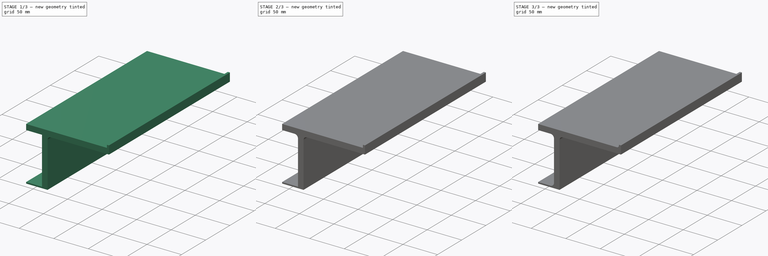
[diagram: build sequence overview — one tinted view per stage of 3, left to right]
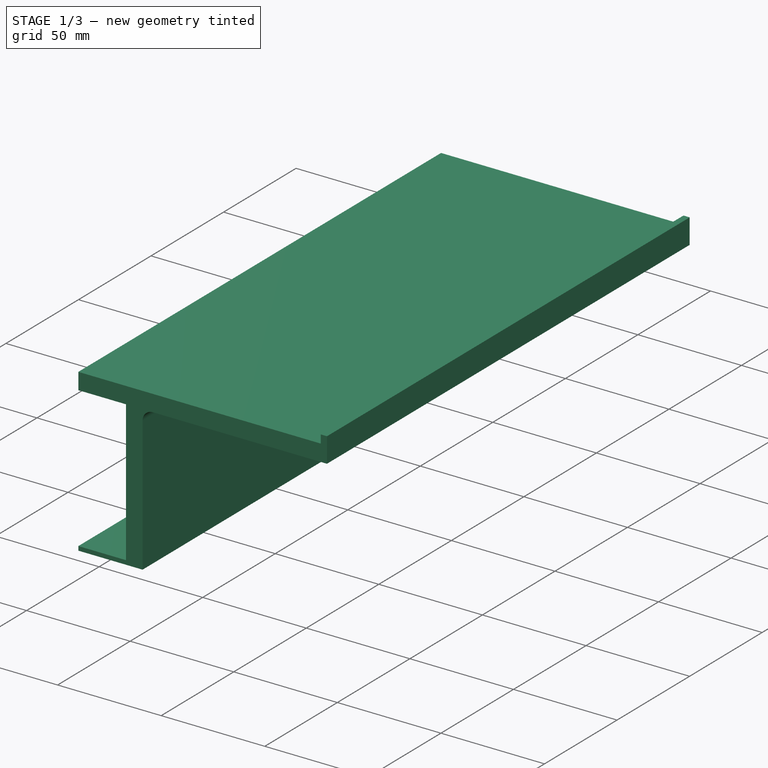
[diagram: stage 1 of 3 — iso view after this stage's code; geometry added in this stage tinted green]
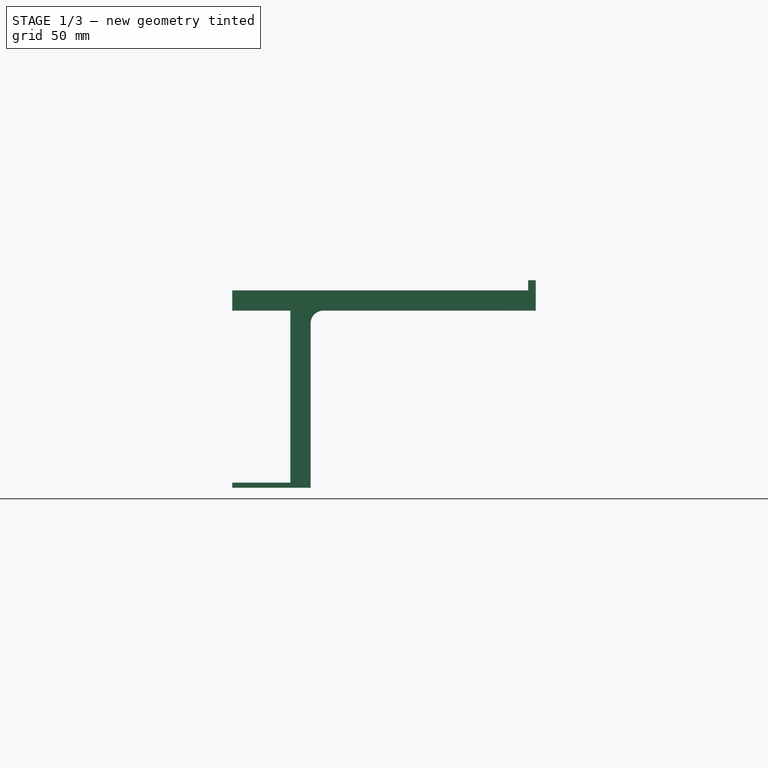
[diagram: stage 1 of 3 — front view after this stage's code; geometry added in this stage tinted green]
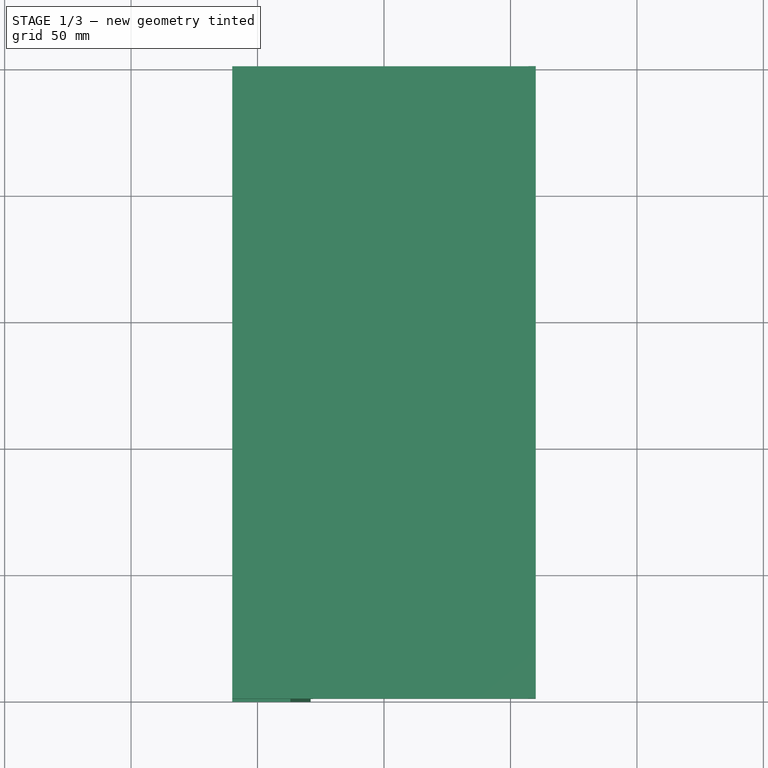
[diagram: stage 1 of 3 — top view after this stage's code; geometry added in this stage tinted green]
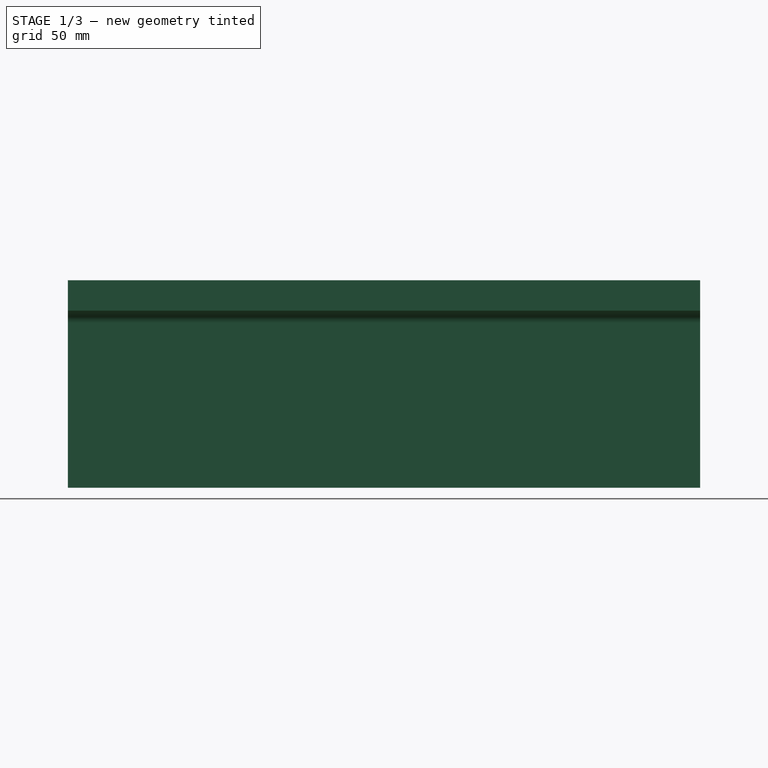
[diagram: stage 1 of 3 — right view after this stage's code; geometry added in this stage tinted green]
FCSTD DOCUMENT  (FreeCAD 1.0R39285 (Git))
Label: RadiatorShelf
License: All rights reserved
LicenseURL: https://en.wikipedia.org/wiki/All_rights_reserved
objects: PartDesign::Fillet×4, Sketcher::SketchObject×1, App::VarSet×1, PartDesign::Pad×1, PartDesign::Body×1
note: 18 computed .brp shape members not serialized (recipe doc carries the construction recipe); baked Part::Feature solids carry a one-line shape summary decoded from their .brp

FEATURE [Sketcher::SketchObject] Sketch
  ArcFitTolerance = 1e-06
  AttachmentSupport = -> [XZ_Plane]
  FullyConstrained = true
  MakeInternals = false
  MapMode = 5
  Placement = pos=(0,0,0) rot=(1,0,0;1.5708rad)
  expr: Constraints[0] = <<Size>>.Depth
  expr: Constraints[17] = <<Size>>.Size_StrutThickness
  expr: Constraints[20] = <<Size>>.Size_BackGap
  expr: Constraints[6] = <<Size>>.Size_StrutHeight
  expr: Constraints[7] = <<Size>>.Size_TopThickness
  sketch-geometry (18):
    g0: LineSegment StartX=57 StartY=77 StartZ=0 EndX=-60 EndY=77 EndZ=0
    g1: LineSegment StartX=-60 StartY=77 StartZ=0 EndX=-60 EndY=69 EndZ=0
    g2: LineSegment StartX=-37 StartY=69 StartZ=0 EndX=-37 EndY=1 EndZ=0
    g3: LineSegment StartX=-29 StartY=-1 StartZ=0 EndX=-29 EndY=69 EndZ=0
    g4: LineSegment StartX=60 StartY=69 StartZ=0 EndX=60 EndY=77 EndZ=0
    g5: LineSegment StartX=-29 StartY=69 StartZ=0 EndX=60 EndY=69 EndZ=0
    g6: LineSegment StartX=-60 StartY=69 StartZ=0 EndX=-37 EndY=69 EndZ=0
    g7: LineSegment StartX=-37 StartY=-1 StartZ=0 EndX=-29 EndY=-1 EndZ=0
    g8: LineSegment [constr] StartX=-37 StartY=69 StartZ=0 EndX=-29 EndY=69 EndZ=0
    g9: LineSegment StartX=-37 StartY=-1 StartZ=0 EndX=-60 EndY=-1 EndZ=0
    g10: LineSegment StartX=-60 StartY=-1 StartZ=0 EndX=-60 EndY=1 EndZ=0
    g11: LineSegment StartX=-60 StartY=1 StartZ=0 EndX=-37 EndY=1 EndZ=0
    g12: LineSegment [constr] StartX=-60 StartY=1 StartZ=0 EndX=-60 EndY=69 EndZ=0
    g13: LineSegment [constr] StartX=-37 StartY=1 StartZ=0 EndX=-37 EndY=-1 EndZ=0
    g14: LineSegment StartX=60 StartY=77 StartZ=0 EndX=60 EndY=81 EndZ=0
    g15: LineSegment StartX=60 StartY=81 StartZ=0 EndX=57 EndY=81 EndZ=0
    g16: LineSegment StartX=57 StartY=81 StartZ=0 EndX=57 EndY=77 EndZ=0
    g17: LineSegment [constr] StartX=57 StartY=77 StartZ=0 EndX=60 EndY=77 EndZ=0
  constraints (49):
    c: DistanceX(g0,g4) = 120
    c: Coincident(g1,g0)
    c: Vertical(g1)
    c: Vertical(g2)
    c: Vertical(g3)
    c: Vertical(g4)
    c: DistanceY(g7,g2) = 70
    c: DistanceY(g1,g1) = 8
    c: Coincident(g5,g3)
    c: Coincident(g5,g4)
    c: Horizontal(g5)
    c: Coincident(g1,g6)
    c: Coincident(g6,g2)
    c: Horizontal(g6)
    c: Coincident(g7,g3)
    c: Horizontal(g7)
    c: Distance(g7,g-1) = 1
    c: DistanceX(g7,g7) = 8
    c: Coincident(g2,g8)
    c: Coincident(g8,g3)
    c: Distance(g3,g1) = 31
    c: Coincident(g7,g9)
    c: Horizontal(g9)
    c: Coincident(g9,g10)
    c: Vertical(g10)
    c: Coincident(g10,g11)
    c: Horizontal(g11)
    c: Distance(g9,g11) = 2
    c: Coincident(g12,g1)
    c: Vertical(g12)
    c: Coincident(g12,g10)
    c: Coincident(g2,g11)
    c: Coincident(g2,g13)
    c: Coincident(g13,g7)
    c: Vertical(g13)
    c: Coincident(g4,g14)
    c: Vertical(g14)
    c: Coincident(g14,g15)
    c: Coincident(g15,g16)
    c: Vertical(g16)
    c: Horizontal(g15)
    c: DistanceX(g15,g15) = 3
    c: DistanceY(g14,g14) = 4
    c: Coincident(g0,g16)
    c: Coincident(g0,g17)
    c: Coincident(g17,g4)
    c: Horizontal(g17)
    c: Horizontal(g0)
    c: Symmetric(g1,g4,g-2)
FEATURE [App::VarSet] VarSet  label="Size"
  Depth = 120
  Size_BackGap = 31
  Size_StrutHeight = 70
  Size_StrutThickness = 8
  Size_TopThickness = 8
  Size_Width = 250
FEATURE [PartDesign::Pad] Pad
  Direction = (0,-1,2e-16)
  Length = 250
  Length2 = 10
  Placement = pos=(0,0,0) rot=(1,0,0;1.5708rad)
  Profile = -> Sketch
  ReferenceAxis = -> Sketch [N_Axis]
  Refine = true
  Suppressed = false
  Type = 0
  expr: Length = VarSet.Size_Width
FEATURE [PartDesign::Fillet] Fillet
  Base = -> Pad [Edge2]
  BaseFeature = -> Pad
  Placement = pos=(0,0,0) rot=(1,0,0;1.5708rad)
  Radius = 5
  Refine = true
  SupportTransform = false
  Suppressed = false
  UseAllEdges = false
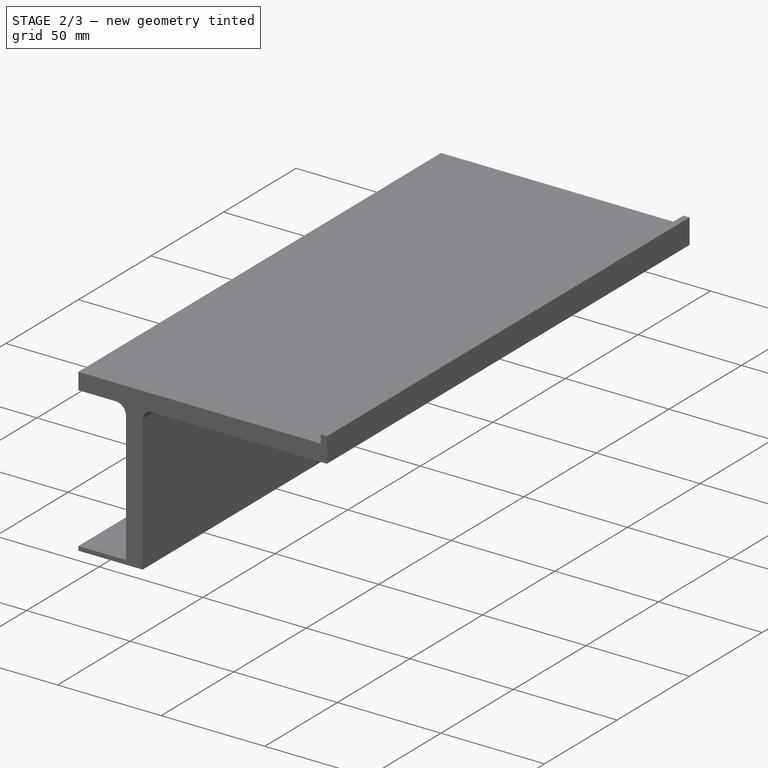
[diagram: stage 2 of 3 — iso view after this stage's code; geometry added in this stage tinted green]
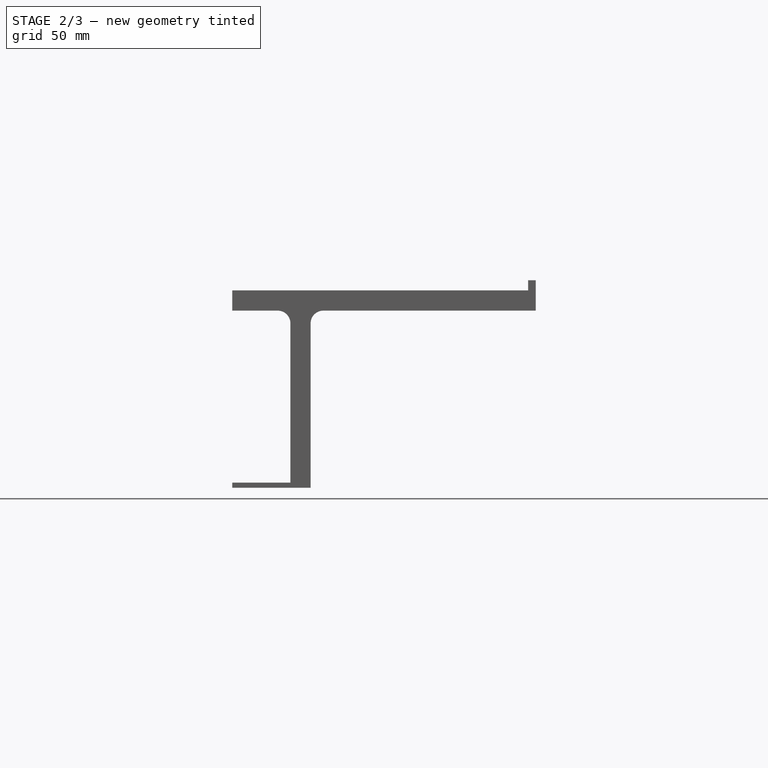
[diagram: stage 2 of 3 — front view after this stage's code; geometry added in this stage tinted green]
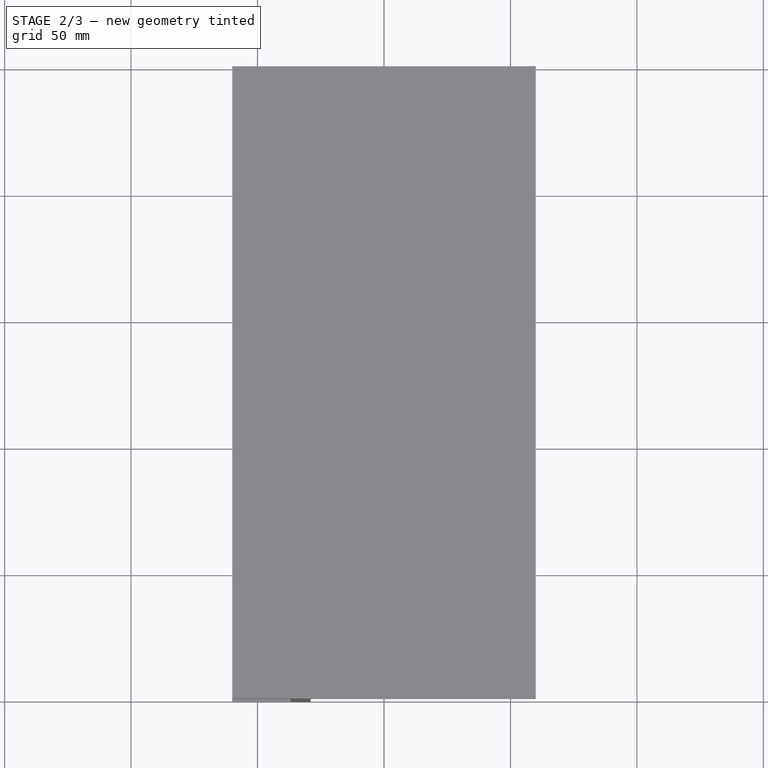
[diagram: stage 2 of 3 — top view after this stage's code; geometry added in this stage tinted green]
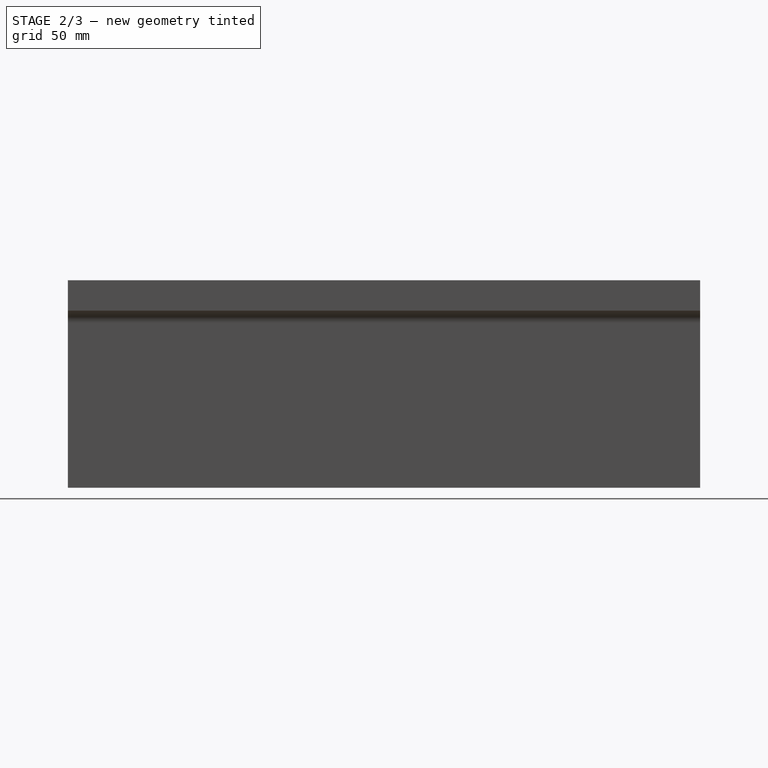
[diagram: stage 2 of 3 — right view after this stage's code; geometry added in this stage tinted green]
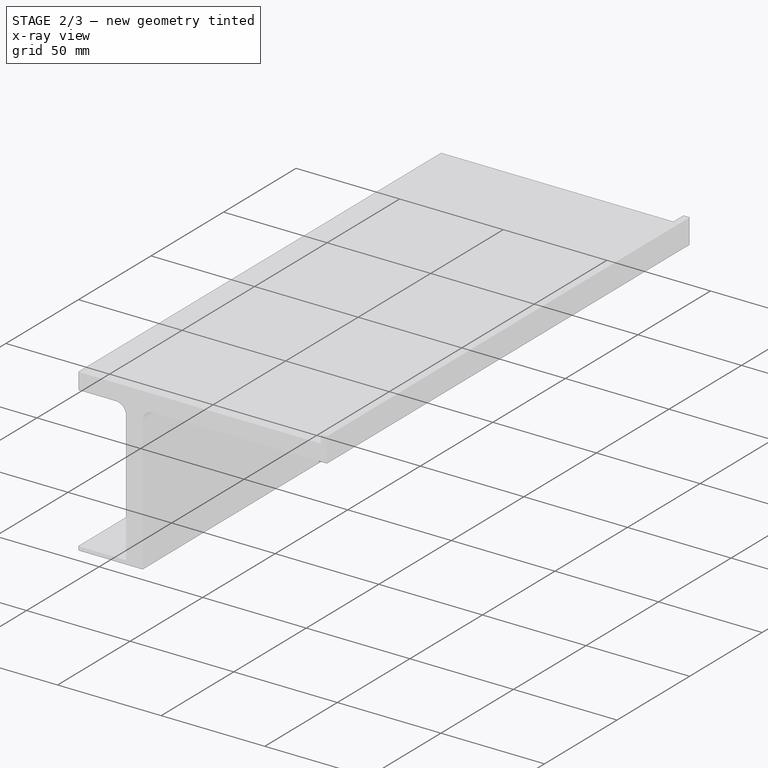
[diagram: stage 2 of 3 — x-ray composite at the iso view; earlier geometry ghosted, this stage's added geometry solid]
FEATURE [PartDesign::Fillet] Fillet001
  Base = -> Fillet [Edge36]
  BaseFeature = -> Fillet
  Placement = pos=(0,0,0) rot=(1,0,0;1.5708rad)
  Radius = 5
  Refine = true
  SupportTransform = false
  Suppressed = false
  UseAllEdges = false
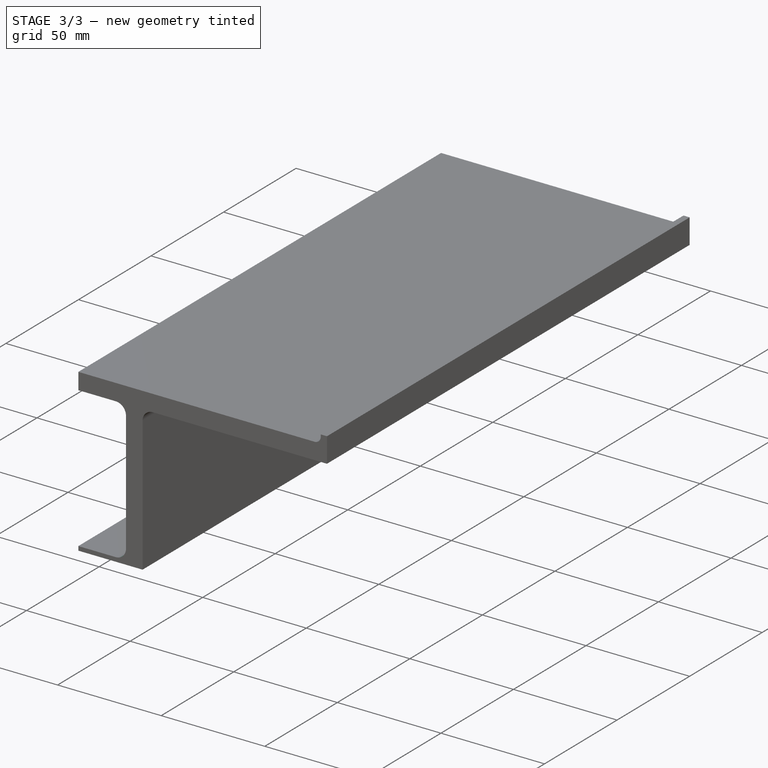
[diagram: stage 3 of 3 — iso view after this stage's code; geometry added in this stage tinted green]
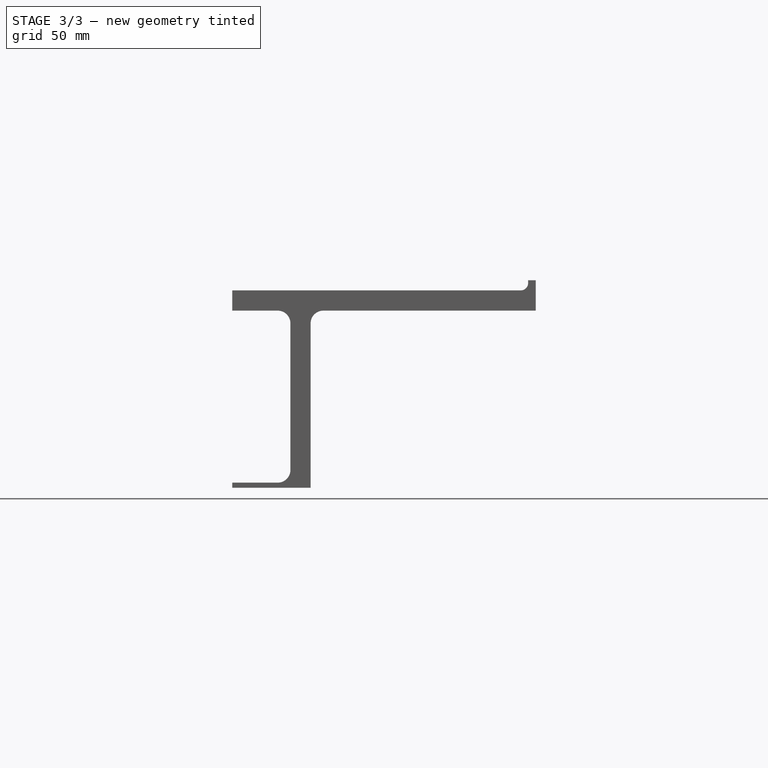
[diagram: stage 3 of 3 — front view after this stage's code; geometry added in this stage tinted green]
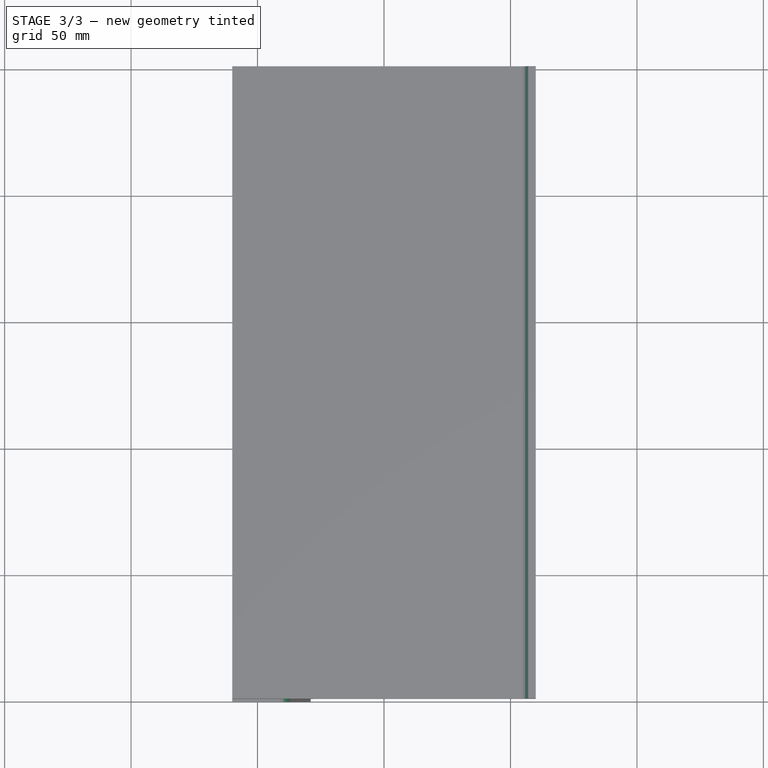
[diagram: stage 3 of 3 — top view after this stage's code; geometry added in this stage tinted green]
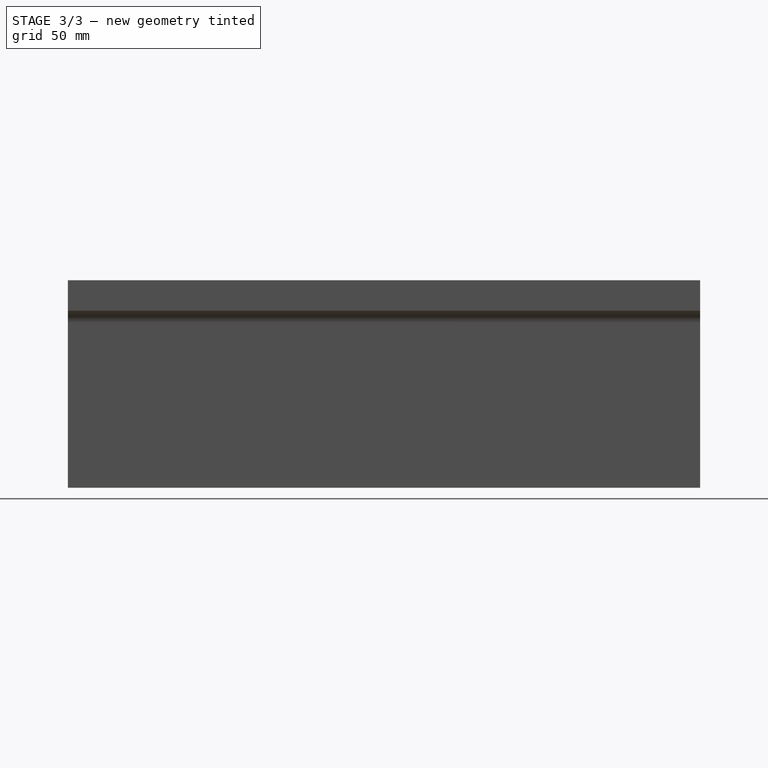
[diagram: stage 3 of 3 — right view after this stage's code; geometry added in this stage tinted green]
FEATURE [PartDesign::Fillet] Fillet002
  Base = -> Fillet001 [Edge16]
  BaseFeature = -> Fillet001
  Placement = pos=(0,0,0) rot=(1,0,0;1.5708rad)
  Radius = 5
  Refine = true
  SupportTransform = false
  Suppressed = false
  UseAllEdges = false
FEATURE [PartDesign::Fillet] Fillet003
  Base = -> Fillet002 [Edge33]
  BaseFeature = -> Fillet002
  Placement = pos=(0,0,0) rot=(1,0,0;1.5708rad)
  Radius = 3
  Refine = true
  SupportTransform = false
  Suppressed = false
  UseAllEdges = false
FEATURE [PartDesign::Body] Body
  AllowCompound = false
  Group = -> [Sketch,Pad,Fillet,Fillet001,Fillet002,Fillet003]
  Origin = -> Origin
  Tip = -> Fillet003
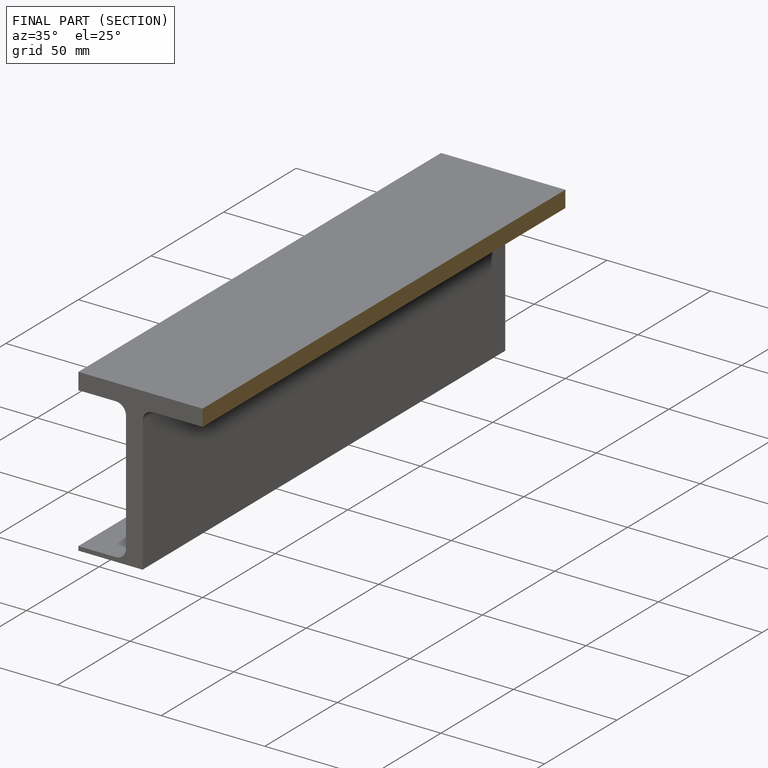
[diagram: finished part — half-section view (interior)]
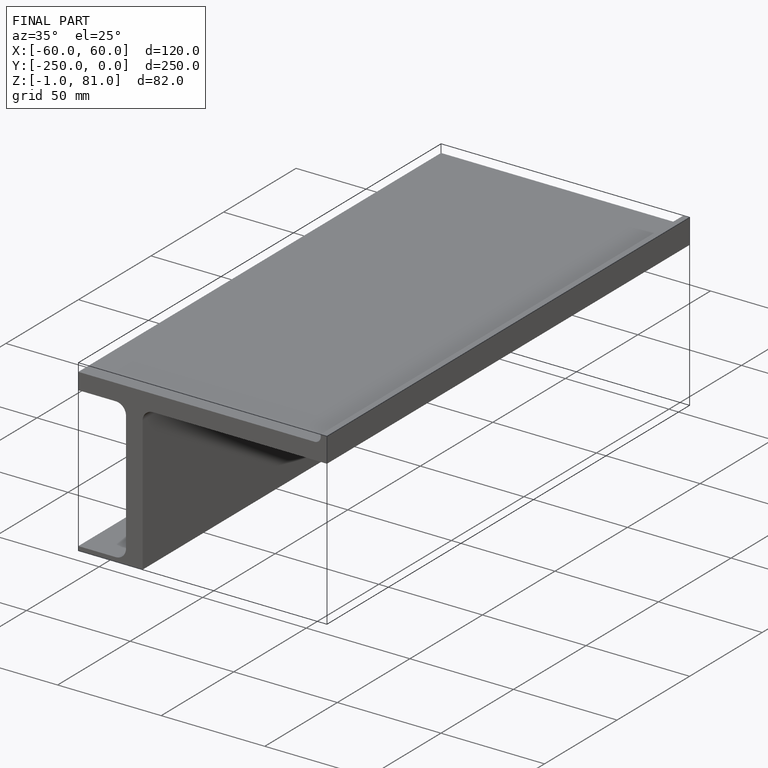
[diagram: finished part — iso view with bounding-box wireframe]
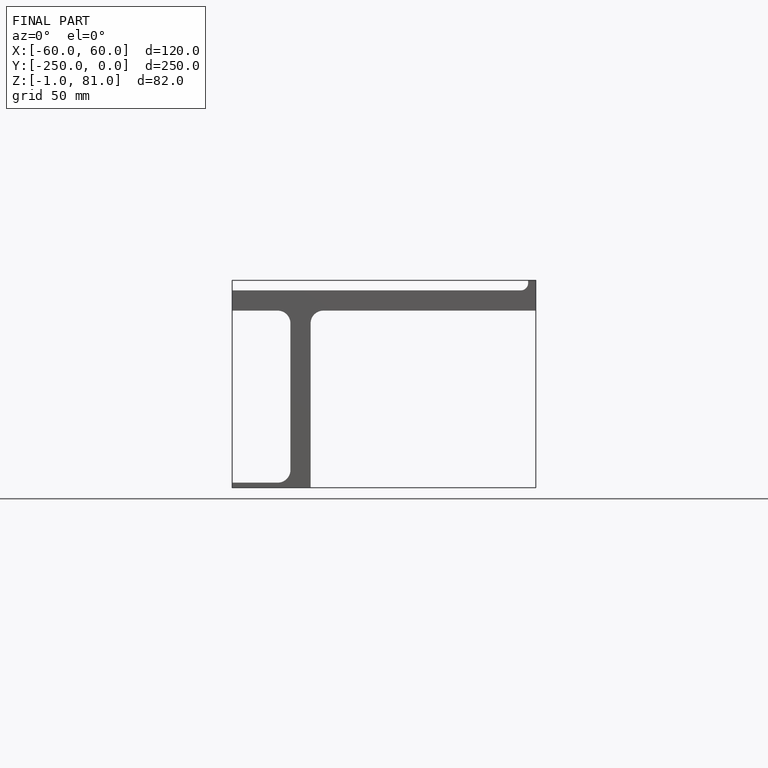
[diagram: finished part — front view with bounding-box wireframe]
